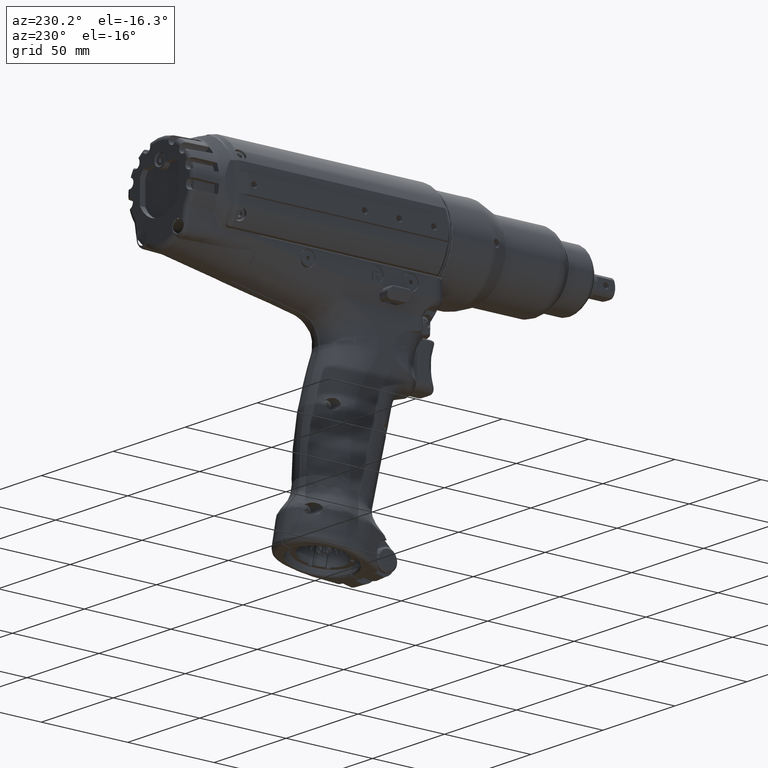
[diagram: clean part render]
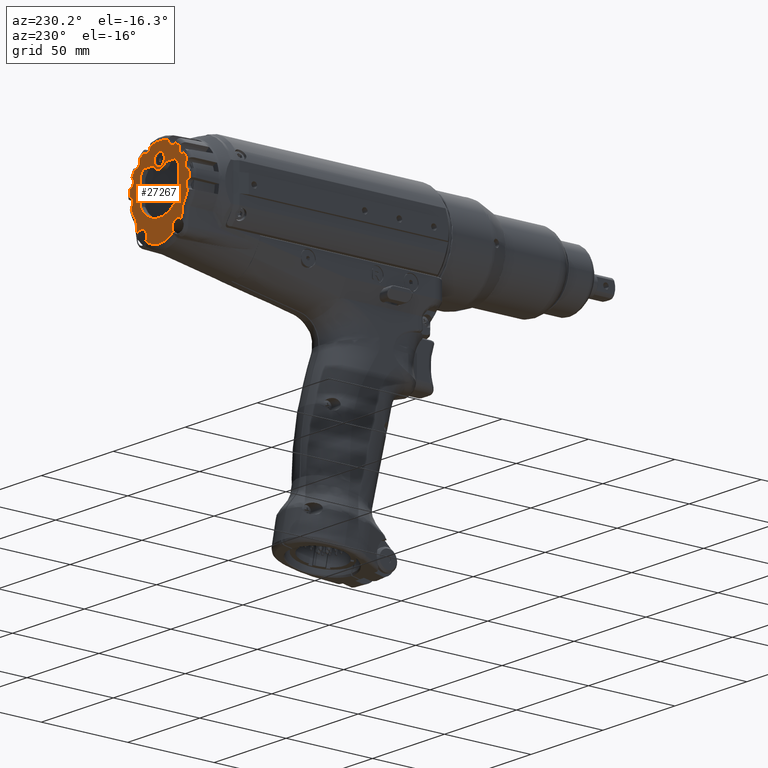
[diagram: same view with one face highlighted and labeled with its STEP entity id]
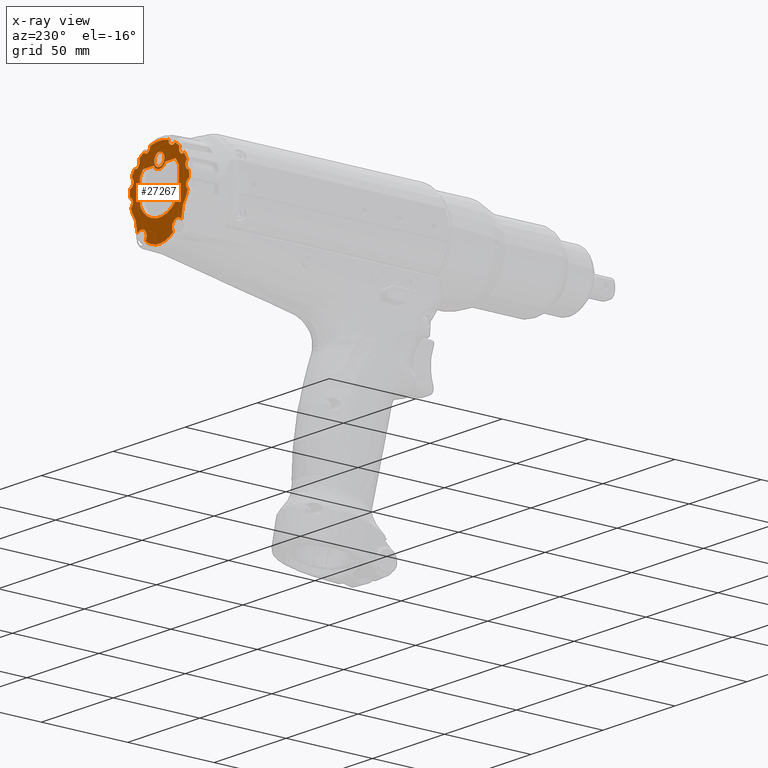
[diagram: x-ray of the same camera — body ghosted, the highlighted face saturated]
A machine part, auxiliary view. The second image highlights one B-rep face of the part: STEP entity #27267.
The next image is the same camera in x-ray: the body ghosted, the highlighted face saturated — about 0% of this face is hidden behind the body in this view.
In plain terms, the highlighted planar face has unit normal (0, 1, -0).
Its self-contained STEP definition (entity closure, byte-faithful):
#330=FACE_BOUND('',#5025,.T.);
#331=FACE_BOUND('',#5026,.T.);
#887=CIRCLE('',#29015,20.5892567443969);
#890=CIRCLE('',#29020,2.75);
#908=CIRCLE('',#29048,20.5892567443969);
#909=CIRCLE('',#29050,20.5892567443969);
#910=CIRCLE('',#29052,20.5892567443969);
#911=CIRCLE('',#29054,20.5892567443969);
#913=CIRCLE('',#29058,2.75);
#919=CIRCLE('',#29067,2.75);
#925=CIRCLE('',#29076,2.75);
#936=CIRCLE('',#29092,20.5892567443969);
#937=CIRCLE('',#29094,20.5892567443969);
#938=CIRCLE('',#29096,20.5892567443969);
#940=CIRCLE('',#29101,2.75);
#946=CIRCLE('',#29110,2.75);
#952=CIRCLE('',#29119,2.75);
#958=CIRCLE('',#29126,15.);
#960=CIRCLE('',#29130,15.);
#962=CIRCLE('',#29134,4.5);
#964=CIRCLE('',#29138,15.);
#970=CIRCLE('',#29148,2.75);
#1116=CIRCLE('',#29413,3.73740772795282);
#1119=CIRCLE('',#29418,3.73740772795269);
#1120=CIRCLE('',#29419,20.5892567443969);
#1121=CIRCLE('',#29420,3.49999999999999);
#1948=PLANE('',#29417);
#3476=FACE_OUTER_BOUND('',#5024,.T.);
#5024=EDGE_LOOP('',(#21886,#21887,#21888,#21889,#21890,#21891,#21892,#21893,
#21894,#21895,#21896,#21897,#21898,#21899,#21900,#21901,#21902,#21903,#21904,
#21905,#21906,#21907,#21908,#21909));
#5025=EDGE_LOOP('',(#21910,#21911,#21912,#21913,#21914,#21915,#21916,#21917));
#5026=EDGE_LOOP('',(#21918));
#5674=ELLIPSE('',#29396,15.739112484229,15.5);
#7812=LINE('',#69304,#9365);
#7814=LINE('',#69320,#9367);
#7816=LINE('',#69336,#9369);
#7818=LINE('',#69347,#9371);
#7913=LINE('',#71296,#9466);
#7922=LINE('',#71500,#9475);
#7925=LINE('',#71720,#9478);
#7927=LINE('',#71833,#9480);
#9365=VECTOR('',#33729,10.);
#9367=VECTOR('',#33739,10.);
#9369=VECTOR('',#33749,10.);
#9371=VECTOR('',#33759,10.);
#9466=VECTOR('',#34338,10.);
#9475=VECTOR('',#34375,10.);
#9478=VECTOR('',#34400,10.);
#9480=VECTOR('',#34426,10.);
#11543=VERTEX_POINT('',#68423);
#11545=VERTEX_POINT('',#68433);
#11555=VERTEX_POINT('',#68483);
#11556=VERTEX_POINT('',#68490);
#11594=VERTEX_POINT('',#68660);
#11597=VERTEX_POINT('',#68685);
#11599=VERTEX_POINT('',#68695);
#11600=VERTEX_POINT('',#68702);
#11602=VERTEX_POINT('',#68728);
#11605=VERTEX_POINT('',#68753);
#11606=VERTEX_POINT('',#68762);
#11608=VERTEX_POINT('',#68778);
#11641=VERTEX_POINT('',#68945);
#11658=VERTEX_POINT('',#69027);
#11659=VERTEX_POINT('',#69034);
#11662=VERTEX_POINT('',#69061);
#11663=VERTEX_POINT('',#69078);
#11703=VERTEX_POINT('',#69288);
#11704=VERTEX_POINT('',#69292);
#11706=VERTEX_POINT('',#69300);
#11708=VERTEX_POINT('',#69308);
#11710=VERTEX_POINT('',#69316);
#11712=VERTEX_POINT('',#69324);
#11714=VERTEX_POINT('',#69332);
#11716=VERTEX_POINT('',#69340);
#11923=VERTEX_POINT('',#71274);
#11926=VERTEX_POINT('',#71287);
#11940=VERTEX_POINT('',#71493);
#11941=VERTEX_POINT('',#71499);
#11950=VERTEX_POINT('',#71714);
#11956=VERTEX_POINT('',#71830);
#11957=VERTEX_POINT('',#71832);
#11958=VERTEX_POINT('',#71835);
#14884=EDGE_CURVE('',#11543,#11545,#887,.T.);
#14896=EDGE_CURVE('',#11556,#11555,#890,.T.);
#14945=EDGE_CURVE('',#11597,#11594,#908,.T.);
#14947=EDGE_CURVE('',#11599,#11600,#909,.T.);
#14955=EDGE_CURVE('',#11605,#11602,#910,.T.);
#14959=EDGE_CURVE('',#11608,#11606,#911,.T.);
#14966=EDGE_CURVE('',#11605,#11606,#913,.T.);
#14982=EDGE_CURVE('',#11597,#11602,#919,.T.);
#15000=EDGE_CURVE('',#11641,#11594,#925,.T.);
#15022=EDGE_CURVE('',#11658,#11659,#936,.T.);
#15027=EDGE_CURVE('',#11662,#11555,#937,.T.);
#15031=EDGE_CURVE('',#11641,#11663,#938,.T.);
#15040=EDGE_CURVE('',#11662,#11659,#940,.T.);
#15056=EDGE_CURVE('',#11658,#11600,#946,.T.);
#15072=EDGE_CURVE('',#11599,#11663,#952,.T.);
#15082=EDGE_CURVE('',#11704,#11703,#958,.T.);
#15086=EDGE_CURVE('',#11703,#11706,#7812,.T.);
#15089=EDGE_CURVE('',#11706,#11708,#960,.T.);
#15092=EDGE_CURVE('',#11708,#11710,#7814,.T.);
#15095=EDGE_CURVE('',#11710,#11712,#962,.T.);
#15098=EDGE_CURVE('',#11712,#11714,#7816,.T.);
#15101=EDGE_CURVE('',#11714,#11716,#964,.T.);
#15103=EDGE_CURVE('',#11716,#11704,#7818,.T.);
#15117=EDGE_CURVE('',#11608,#11545,#970,.T.);
#15456=EDGE_CURVE('',#11926,#11923,#7913,.T.);
#15483=EDGE_CURVE('',#11940,#11941,#7922,.T.);
#15487=EDGE_CURVE('',#11941,#11926,#5674,.T.);
#15503=EDGE_CURVE('',#11950,#11543,#7925,.T.);
#15509=EDGE_CURVE('',#11923,#11950,#1116,.T.);
#15516=EDGE_CURVE('',#11956,#11940,#1119,.T.);
#15517=EDGE_CURVE('',#11957,#11956,#7927,.T.);
#15518=EDGE_CURVE('',#11556,#11957,#1120,.T.);
#15519=EDGE_CURVE('',#11958,#11958,#1121,.T.);
#21886=ORIENTED_EDGE('',*,*,#15516,.F.);
#21887=ORIENTED_EDGE('',*,*,#15517,.F.);
#21888=ORIENTED_EDGE('',*,*,#15518,.F.);
#21889=ORIENTED_EDGE('',*,*,#14896,.T.);
#21890=ORIENTED_EDGE('',*,*,#15027,.F.);
#21891=ORIENTED_EDGE('',*,*,#15040,.T.);
#21892=ORIENTED_EDGE('',*,*,#15022,.F.);
#21893=ORIENTED_EDGE('',*,*,#15056,.T.);
#21894=ORIENTED_EDGE('',*,*,#14947,.F.);
#21895=ORIENTED_EDGE('',*,*,#15072,.T.);
#21896=ORIENTED_EDGE('',*,*,#15031,.F.);
#21897=ORIENTED_EDGE('',*,*,#15000,.T.);
#21898=ORIENTED_EDGE('',*,*,#14945,.F.);
#21899=ORIENTED_EDGE('',*,*,#14982,.T.);
#21900=ORIENTED_EDGE('',*,*,#14955,.F.);
#21901=ORIENTED_EDGE('',*,*,#14966,.T.);
#21902=ORIENTED_EDGE('',*,*,#14959,.F.);
#21903=ORIENTED_EDGE('',*,*,#15117,.T.);
#21904=ORIENTED_EDGE('',*,*,#14884,.F.);
#21905=ORIENTED_EDGE('',*,*,#15503,.F.);
#21906=ORIENTED_EDGE('',*,*,#15509,.F.);
#21907=ORIENTED_EDGE('',*,*,#15456,.F.);
#21908=ORIENTED_EDGE('',*,*,#15487,.F.);
#21909=ORIENTED_EDGE('',*,*,#15483,.F.);
#21910=ORIENTED_EDGE('',*,*,#15103,.T.);
#21911=ORIENTED_EDGE('',*,*,#15082,.T.);
#21912=ORIENTED_EDGE('',*,*,#15086,.T.);
#21913=ORIENTED_EDGE('',*,*,#15089,.T.);
#21914=ORIENTED_EDGE('',*,*,#15092,.T.);
#21915=ORIENTED_EDGE('',*,*,#15095,.T.);
#21916=ORIENTED_EDGE('',*,*,#15098,.T.);
#21917=ORIENTED_EDGE('',*,*,#15101,.T.);
#21918=ORIENTED_EDGE('',*,*,#15519,.T.);
#27267=ADVANCED_FACE('',(#3476,#330,#331),#1948,.T.);
#29015=AXIS2_PLACEMENT_3D('',#68434,#33470,#33471);
#29020=AXIS2_PLACEMENT_3D('',#68491,#33482,#33483);
#29048=AXIS2_PLACEMENT_3D('',#68692,#33544,#33545);
#29050=AXIS2_PLACEMENT_3D('',#68703,#33548,#33549);
#29052=AXIS2_PLACEMENT_3D('',#68760,#33552,#33553);
#29054=AXIS2_PLACEMENT_3D('',#68785,#33556,#33557);
#29058=AXIS2_PLACEMENT_3D('',#68805,#33567,#33568);
#29067=AXIS2_PLACEMENT_3D('',#68868,#33589,#33590);
#29076=AXIS2_PLACEMENT_3D('',#68946,#33611,#33612);
#29092=AXIS2_PLACEMENT_3D('',#69035,#33644,#33645);
#29094=AXIS2_PLACEMENT_3D('',#69068,#33648,#33649);
#29096=AXIS2_PLACEMENT_3D('',#69094,#33652,#33653);
#29101=AXIS2_PLACEMENT_3D('',#69121,#33666,#33667);
#29110=AXIS2_PLACEMENT_3D('',#69184,#33688,#33689);
#29119=AXIS2_PLACEMENT_3D('',#69247,#33710,#33711);
#29126=AXIS2_PLACEMENT_3D('',#69293,#33724,#33725);
#29130=AXIS2_PLACEMENT_3D('',#69312,#33734,#33735);
#29134=AXIS2_PLACEMENT_3D('',#69328,#33744,#33745);
#29138=AXIS2_PLACEMENT_3D('',#69344,#33754,#33755);
#29148=AXIS2_PLACEMENT_3D('',#69412,#33778,#33779);
#29396=AXIS2_PLACEMENT_3D('',#71552,#34376,#34377);
#29413=AXIS2_PLACEMENT_3D('',#71805,#34413,#34414);
#29417=AXIS2_PLACEMENT_3D('',#71829,#34422,#34423);
#29418=AXIS2_PLACEMENT_3D('',#71831,#34424,#34425);
#29419=AXIS2_PLACEMENT_3D('',#71834,#34427,#34428);
#29420=AXIS2_PLACEMENT_3D('',#71836,#34429,#34430);
#33470=DIRECTION('center_axis',(-2.8563974840679E-15,-1.,4.39973992522287E-16));
#33471=DIRECTION('ref_axis',(-1.34548270429144E-14,4.39973992522325E-16,
1.));
#33482=DIRECTION('center_axis',(-2.8563974840679E-15,-1.,4.39973992522287E-16));
#33483=DIRECTION('ref_axis',(-0.173648177666944,9.29298016760517E-16,0.984807753012206));
#33544=DIRECTION('center_axis',(-2.8563974840679E-15,-1.,4.39973992522287E-16));
#33545=DIRECTION('ref_axis',(-1.34548270429144E-14,4.39973992522325E-16,
1.));
#33548=DIRECTION('center_axis',(-2.8563974840679E-15,-1.,4.39973992522287E-16));
#33549=DIRECTION('ref_axis',(-1.34548270429144E-14,4.39973992522325E-16,
1.));
#33552=DIRECTION('center_axis',(-2.8563974840679E-15,-1.,4.39973992522287E-16));
#33553=DIRECTION('ref_axis',(-1.34548270429144E-14,4.39973992522325E-16,
1.));
#33556=DIRECTION('center_axis',(-2.8563974840679E-15,-1.,4.39973992522287E-16));
#33557=DIRECTION('ref_axis',(-1.34548270429144E-14,4.39973992522325E-16,
1.));
#33567=DIRECTION('center_axis',(-2.8563974840679E-15,-1.,4.39973992522287E-16));
#33568=DIRECTION('ref_axis',(0.256347371737331,-7.09291274348728E-16,-0.966584722103222));
#33589=DIRECTION('center_axis',(-2.8563974840679E-15,-1.,4.39973992522287E-16));
#33590=DIRECTION('ref_axis',(0.640825974272302,-1.81219251909362E-15,-0.767686179827379));
#33611=DIRECTION('center_axis',(-2.8563974840679E-15,-1.,4.39973992522287E-16));
#33612=DIRECTION('ref_axis',(0.90522376949934,-2.57547825079732E-15,-0.42493520345272));
#33644=DIRECTION('center_axis',(-2.8563974840679E-15,-1.,4.39973992522287E-16));
#33645=DIRECTION('ref_axis',(-1.34548270429144E-14,4.39973992522325E-16,
1.));
#33648=DIRECTION('center_axis',(-2.8563974840679E-15,-1.,4.39973992522287E-16));
#33649=DIRECTION('ref_axis',(-1.34548270429144E-14,4.39973992522325E-16,
1.));
#33652=DIRECTION('center_axis',(-2.8563974840679E-15,-1.,4.39973992522287E-16));
#33653=DIRECTION('ref_axis',(-1.34548270429144E-14,4.39973992522325E-16,
1.));
#33666=DIRECTION('center_axis',(-2.8563974840679E-15,-1.,4.39973992522287E-16));
#33667=DIRECTION('ref_axis',(0.258819045102507,-3.05556220728674E-16,0.965925826289072));
#33688=DIRECTION('center_axis',(-2.8563974840679E-15,-1.,4.39973992522287E-16));
#33689=DIRECTION('ref_axis',(0.642787609686528,-1.39762241714046E-15,0.766044443118987));
#33710=DIRECTION('center_axis',(-2.8563974840679E-15,-1.,4.39973992522287E-16));
#33711=DIRECTION('ref_axis',(0.906307787036644,-2.14226437518628E-15,0.422618261740712));
#33724=DIRECTION('center_axis',(-2.8563974840679E-15,-1.,4.39973992522287E-16));
#33725=DIRECTION('ref_axis',(0.899441762878247,-2.76144970089621E-15,-0.437040633340279));
#33729=DIRECTION('',(0.00127899500761656,4.36320314539309E-16,0.999999182085551));
#33734=DIRECTION('center_axis',(-2.8563974840679E-15,-1.,4.39973992522287E-16));
#33735=DIRECTION('ref_axis',(0.746208046200905,-1.83857046075997E-15,0.665712814797063));
#33739=DIRECTION('',(-0.999999182085551,2.85695787231904E-15,0.00127899500761636));
#33744=DIRECTION('center_axis',(2.8563974840679E-15,1.,-4.39973992522287E-16));
#33745=DIRECTION('ref_axis',(-0.895238326475644,2.75320347335823E-15,0.445587633141999));
#33749=DIRECTION('',(-0.999999182085551,2.85695787231904E-15,0.00127899500761605));
#33754=DIRECTION('center_axis',(-2.8563974840679E-15,-1.,4.39973992522287E-16));
#33755=DIRECTION('ref_axis',(-0.899441762878247,2.76144970089621E-15,0.437040633340278));
#33759=DIRECTION('',(-0.00127899500761554,-4.36320314539312E-16,-0.999999182085551));
#33778=DIRECTION('center_axis',(-2.8563974840679E-15,-1.,4.39973992522287E-16));
#33779=DIRECTION('ref_axis',(-0.176166735888459,5.26558966836992E-16,-0.984360341118234));
#34338=DIRECTION('',(1.,-2.85639748406789E-15,1.32175828636482E-14));
#34375=DIRECTION('',(1.,-2.85639748406789E-15,1.32175828636482E-14));
#34376=DIRECTION('center_axis',(-2.8563974840679E-15,-1.,4.39973992522287E-16));
#34377=DIRECTION('ref_axis',(1.52183048529524E-14,-4.3997399252233E-16,
-1.));
#34400=DIRECTION('',(0.173648177666918,-6.27184188410763E-17,0.98480775301221));
#34413=DIRECTION('center_axis',(2.8563974840679E-15,1.,-4.39973992522287E-16));
#34414=DIRECTION('ref_axis',(-0.642787609686552,2.17309654318725E-15,0.766044443118967));
#34422=DIRECTION('center_axis',(2.8563974840679E-15,1.,-4.39973992522287E-16));
#34423=DIRECTION('ref_axis',(1.34548270429144E-14,-4.39973992522325E-16,
-1.));
#34424=DIRECTION('center_axis',(2.8563974840679E-15,1.,-4.39973992522287E-16));
#34425=DIRECTION('ref_axis',(0.64278760968653,-1.49901727901005E-15,0.766044443118986));
#34426=DIRECTION('',(0.173648177666944,-9.29298016760517E-16,-0.984807753012206));
#34427=DIRECTION('center_axis',(-2.8563974840679E-15,-1.,4.39973992522287E-16));
#34428=DIRECTION('ref_axis',(-1.34548270429144E-14,4.39973992522325E-16,
1.));
#34429=DIRECTION('center_axis',(-2.8563974840679E-15,-1.,4.39973992522287E-16));
#34430=DIRECTION('ref_axis',(-1.34548270429144E-14,-2.35171747994207E-17,
1.));
#68423=CARTESIAN_POINT('',(16.4111284610552,240.,-12.433517439624));
#68433=CARTESIAN_POINT('',(19.6666326296357,240.,-6.09434609270255));
#68434=CARTESIAN_POINT('Origin',(-3.90540247854659E-14,240.,7.2820806663655E-14));
#68483=CARTESIAN_POINT('',(-20.5623545060551,240.,-1.0521741557413));
#68490=CARTESIAN_POINT('',(-19.6821575508739,240.,-6.04401914534283));
#68491=CARTESIAN_POINT('Origin',(-21.1733666897625,240.,-3.73343581983922));
#68660=CARTESIAN_POINT('',(10.9767853628697,240.,17.419175536867));
#68685=CARTESIAN_POINT('',(14.0617555590972,240.,15.0394322992224));
#68692=CARTESIAN_POINT('Origin',(-3.90540247854659E-14,240.,7.2820806663655E-14));
#68695=CARTESIAN_POINT('',(-10.9321914099469,240.,17.4471970317006));
#68702=CARTESIAN_POINT('',(-14.0232388676735,240.,15.0753528962631));
#68703=CARTESIAN_POINT('Origin',(-3.90540247854659E-14,240.,7.2820806663655E-14));
#68728=CARTESIAN_POINT('',(17.3100077373455,240.,11.1481444832641));
#68753=CARTESIAN_POINT('',(19.10021729848,240.,7.68759991398744));
#68760=CARTESIAN_POINT('Origin',(-3.90540247854659E-14,240.,7.2820806663655E-14));
#68762=CARTESIAN_POINT('',(20.3996042491721,240.,2.78812477551688));
#68778=CARTESIAN_POINT('',(20.5595957843118,240.,-1.10476896788417));
#68785=CARTESIAN_POINT('Origin',(-3.90540247854659E-14,240.,7.2820806663655E-14));
#68805=CARTESIAN_POINT('Origin',(20.7815715252192,240.,5.5114684923527));
#68868=CARTESIAN_POINT('Origin',(16.5052528662886,240.,13.7777584468546));
#68945=CARTESIAN_POINT('',(6.38833982675146,240.,19.573109296804));
#68946=CARTESIAN_POINT('Origin',(9.13610687423344,240.,19.4623110442359));
#69027=CARTESIAN_POINT('',(-17.2814342859948,240.,11.1923868011046));
#69034=CARTESIAN_POINT('',(-19.0804900213938,240.,7.73643288797799));
#69035=CARTESIAN_POINT('Origin',(-3.90540247854659E-14,240.,7.2820806663655E-14));
#69061=CARTESIAN_POINT('',(-20.3924055191716,240.,2.84029759503411));
#69068=CARTESIAN_POINT('Origin',(-3.90540247854659E-14,240.,7.2820806663655E-14));
#69078=CARTESIAN_POINT('',(-6.33825114910121,240.,19.5893865564395));
#69094=CARTESIAN_POINT('Origin',(-3.90540247854659E-14,240.,7.2820806663655E-14));
#69121=CARTESIAN_POINT('Origin',(-20.7674052652151,240.,5.56460946970398));
#69184=CARTESIAN_POINT('Origin',(-16.4699555270583,240.,13.8199336082604));
#69247=CARTESIAN_POINT('Origin',(-9.08629262742535,240.,19.4856174212879));
#69288=CARTESIAN_POINT('',(13.4916264431737,240.,-6.55560950010411));
#69292=CARTESIAN_POINT('',(-13.5083514731362,240.,-6.52107663489847));
#69293=CARTESIAN_POINT('Origin',(-3.90540247854659E-14,240.,7.2820806663655E-14));
#69300=CARTESIAN_POINT('',(13.5083514731361,240.,6.52107663489861));
#69304=CARTESIAN_POINT('',(13.4916379080015,240.,-6.54664557264117));
#69308=CARTESIAN_POINT('',(11.1931206930135,240.,9.98569222195602));
#69312=CARTESIAN_POINT('Origin',(-3.90540247854659E-14,240.,7.2820806663655E-14));
#69316=CARTESIAN_POINT('',(4.02857246914019,240.,9.99485565086108));
#69320=CARTESIAN_POINT('',(2.0332135172523,240.,9.99740770708631));
#69324=CARTESIAN_POINT('',(-4.03368842406446,240.,10.0051672507276));
#69328=CARTESIAN_POINT('Origin',(-2.06945604991968E-13,240.,12.0000000000001));
#69332=CARTESIAN_POINT('',(-11.1675407928613,240.,10.0142914197551));
#69336=CARTESIAN_POINT('',(-5.56484311374844,240.,10.0071255915333));
#69340=CARTESIAN_POINT('',(-13.4916264431737,240.,6.55560950010425));
#69344=CARTESIAN_POINT('Origin',(-3.90540247854659E-14,240.,7.2820806663655E-14));
#69347=CARTESIAN_POINT('',(-13.5167025232896,240.,-13.0504557749369));
#69412=CARTESIAN_POINT('Origin',(21.163747334042,240.,-3.78758482160178));
#71274=CARTESIAN_POINT('',(9.53655977623179,240.,-23.7773314570153));
#71287=CARTESIAN_POINT('',(9.52086011341808,240.,-23.7773314570153));
#71296=CARTESIAN_POINT('',(6.25000000000027,240.,-23.7773314570154));
#71493=CARTESIAN_POINT('',(-9.53655977656883,240.,-23.7773314572651));
#71499=CARTESIAN_POINT('',(-9.52086011341751,240.,-23.7773314570153));
#71500=CARTESIAN_POINT('',(-4.93610907752965,240.,-23.7773314570155));
#71552=CARTESIAN_POINT('Origin',(1.13757898483635E-13,240.,-11.3574052480722));
#71714=CARTESIAN_POINT('',(15.25732966953,240.,-18.9770355494986));
#71720=CARTESIAN_POINT('',(15.8028122488075,240.,-15.8834501147234));
#71805=CARTESIAN_POINT('Origin',(12.5000000000002,240.,-21.4999999999998));
#71829=CARTESIAN_POINT('Origin',(2.22401569668125E-13,240.,-19.5971334051222));
#71830=CARTESIAN_POINT('',(-15.2573296696894,240.,-18.9770355498202));
#71831=CARTESIAN_POINT('Origin',(-12.4999999999998,240.,-21.5000000000001));
#71832=CARTESIAN_POINT('',(-16.411128461055,240.,-12.4335174396244));
#71833=CARTESIAN_POINT('',(-14.7169777913806,240.,-22.0415233322411));
#71834=CARTESIAN_POINT('Origin',(-3.90540247854659E-14,240.,7.2820806663655E-14));
#71835=CARTESIAN_POINT('',(-1.52991428270537E-13,240.,8.50000000000007));
#71836=CARTESIAN_POINT('Origin',(-2.00511949300439E-13,240.,12.0000000000001));